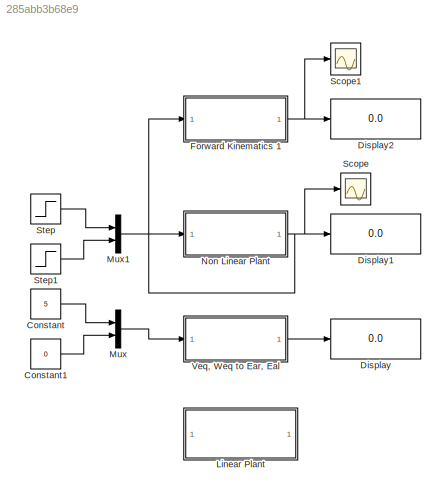
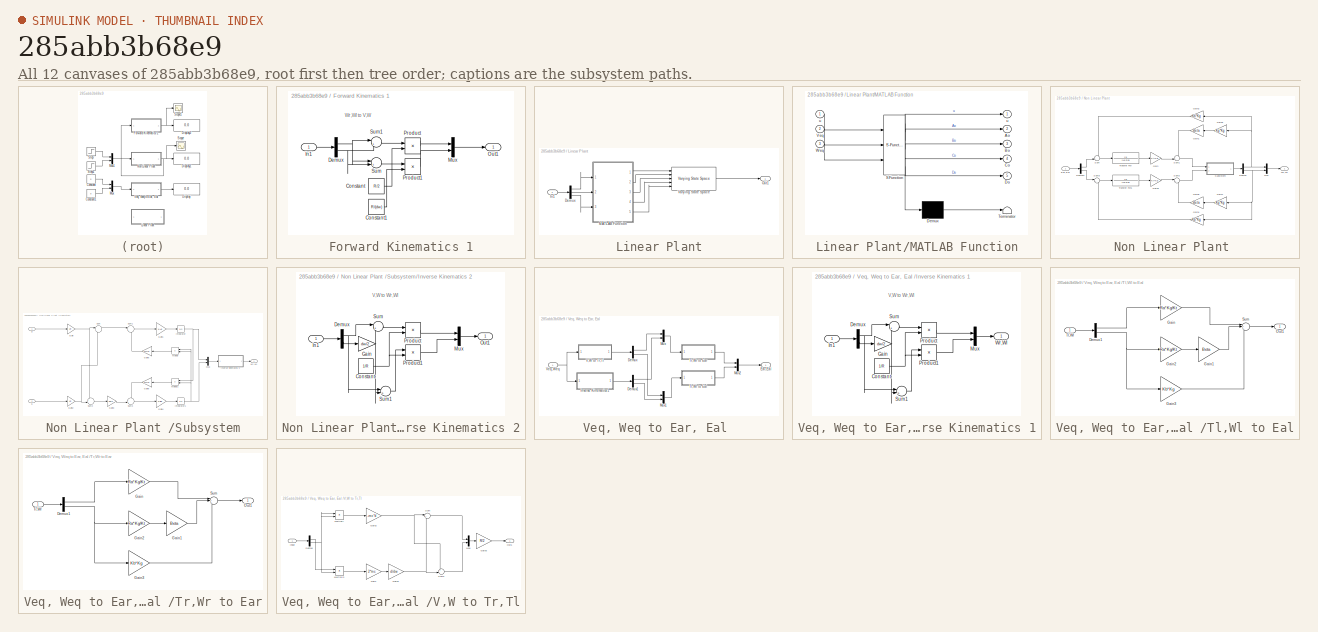
[diagram: thumbnail index - all 12 canvases of the model, root first then tree order]
MODEL slx_285abb3b68e9
KIND model
CONFIG AbsTol = auto
CONFIG EnableMultiTasking = off
CONFIG FixedStep = auto
CONFIG MaxStep = auto
CONFIG MinStep = auto
CONFIG RelTol = 1e-3
CONFIG SampleTimeConstraint = Unconstrained
CONFIG Solver = VariableStepAuto
CONFIG SolverName = VariableStepAuto
CONFIG StartTime = 0.0
CONFIG StopTime = 30
BLOCK [Constant] Constant
  Value = 5
BLOCK [Constant] Constant1
  Value = 0
BLOCK [Display] Display
  Decimation = 1
  Ports = [1]
BLOCK [Display] Display1
  Decimation = 1
  Ports = [1]
BLOCK [Display] Display2
  Decimation = 1
  Ports = [1]
BLOCK [SubSystem] Forward Kinematics 1
  Ports = [1, 1]
  RequestExecContextInheritance = off
BLOCK [Constant] Forward Kinematics 1/Constant
  Value = R/2
BLOCK [Constant] Forward Kinematics 1/Constant1
  Value = R/(dw)
BLOCK [Demux] Forward Kinematics 1/Demux
  DisplayOption = bar
  Outputs = 2
  Ports = [1, 2]
BLOCK [Inport] Forward Kinematics 1/In1
  IconDisplay = Port number
BLOCK [Mux] Forward Kinematics 1/Mux
  DisplayOption = bar
  Inputs = 2
  Ports = [2, 1]
BLOCK [Outport] Forward Kinematics 1/Out1
  IconDisplay = Port number
BLOCK [Product] Forward Kinematics 1/Product
  InputSameDT = off
  OutDataTypeStr = Inherit: Inherit via internal rule
  Ports = [2, 1]
  RndMeth = Floor
  SaturateOnIntegerOverflow = off
BLOCK [Product] Forward Kinematics 1/Product1
  InputSameDT = off
  OutDataTypeStr = Inherit: Inherit via internal rule
  Ports = [2, 1]
  RndMeth = Floor
  SaturateOnIntegerOverflow = off
BLOCK [Sum] Forward Kinematics 1/Sum
  IconShape = round
  InputSameDT = off
  Inputs = |+-
  OutDataTypeStr = Inherit: Inherit via internal rule
  Ports = [2, 1]
  SaturateOnIntegerOverflow = off
BLOCK [Sum] Forward Kinematics 1/Sum1
  IconShape = round
  InputSameDT = off
  Inputs = |++
  OutDataTypeStr = Inherit: Inherit via internal rule
  Ports = [2, 1]
  SaturateOnIntegerOverflow = off
BLOCK [SubSystem] Linear Plant
  Ports = [1, 1]
  RequestExecContextInheritance = off
BLOCK [Demux] Linear Plant/Demux
  DisplayOption = bar
  Outputs = 3
  Ports = [1, 3]
BLOCK [Inport] Linear Plant/In1
  IconDisplay = Port number
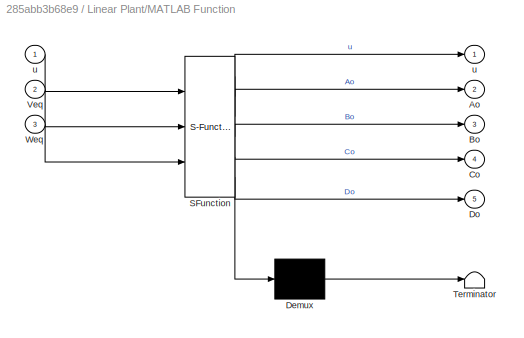
BLOCK [SubSystem] Linear Plant/MATLAB Function
  ErrorFcn = Stateflow.Translate.translate
  PermitHierarchicalResolution = ExplicitOnly
  Ports = [3, 5]
  RequestExecContextInheritance = off
  SFBlockType = MATLAB Function
  SystemSampleTime = 0
  TreatAsAtomicUnit = on
BLOCK [Demux] Linear Plant/MATLAB Function/ Demux 
  Outputs = 1
  Ports = [1, 1]
BLOCK [S-Function] Linear Plant/MATLAB Function/ SFunction 
  EnableBusSupport = on
  FunctionName = sf_sfun
  Parameters = I,Iw,L,R,d,dw,md
  PortCounts = [3 6]
  Ports = [3, 6]
  SFcnIsStateOwnerBlock = off
  SFunctionDeploymentMode = off
  Tag = Stateflow S-Function NonLinear_Plant 1
BLOCK [Terminator] Linear Plant/MATLAB Function/ Terminator 
BLOCK [Outport] Linear Plant/MATLAB Function/Ao
  IconDisplay = Port number
  Port = 2
BLOCK [Outport] Linear Plant/MATLAB Function/Bo
  IconDisplay = Port number
  Port = 3
BLOCK [Outport] Linear Plant/MATLAB Function/Co
  IconDisplay = Port number
  Port = 4
BLOCK [Outport] Linear Plant/MATLAB Function/Do
  IconDisplay = Port number
  Port = 5
BLOCK [Inport] Linear Plant/MATLAB Function/Veq
  IconDisplay = Port number
  Port = 2
BLOCK [Inport] Linear Plant/MATLAB Function/Weq
  IconDisplay = Port number
  Port = 3
BLOCK [Outport] Linear Plant/MATLAB Function/u
  IconDisplay = Port number
BLOCK [Inport] Linear Plant/MATLAB Function/u 
  IconDisplay = Port number
BLOCK [Outport] Linear Plant/Out1
  IconDisplay = Port number
BLOCK [Reference] Linear Plant/Varying State Space  REF=cstblocks/Linear Parameter Varying/Varying State Space
  Ports = [5, 1]
  SourceBlock = cstblocks/Linear Parameter Varying/Varying State Space
  SourceProductBaseCode = CT
  SourceProductName = Control System Toolbox
  SourceType = Varying State Space
BLOCK [Mux] Mux
  DisplayOption = bar
  Inputs = 2
  Ports = [2, 1]
BLOCK [Mux] Mux1
  DisplayOption = bar
  Inputs = 2
  Ports = [2, 1]
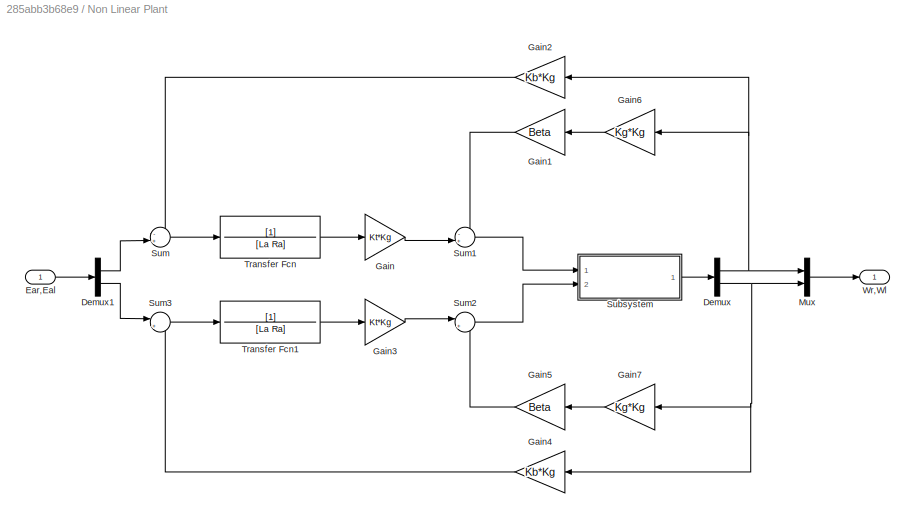
BLOCK [SubSystem] Non Linear Plant 
  Ports = [1, 1]
  RequestExecContextInheritance = off
BLOCK [Demux] Non Linear Plant /Demux
  DisplayOption = bar
  Outputs = 2
  Ports = [1, 2]
BLOCK [Demux] Non Linear Plant /Demux1
  DisplayOption = bar
  Outputs = 2
  Ports = [1, 2]
BLOCK [Inport] Non Linear Plant /Ear,Eal
  IconDisplay = Port number
BLOCK [Gain] Non Linear Plant /Gain
  Gain = Kt*Kg
  OutDataTypeStr = Inherit: Inherit via internal rule
  ParamDataTypeStr = Inherit: Inherit via internal rule
  SaturateOnIntegerOverflow = off
BLOCK [Gain] Non Linear Plant /Gain1
  Gain = Beta
  OutDataTypeStr = Inherit: Inherit via internal rule
  ParamDataTypeStr = Inherit: Inherit via internal rule
  SaturateOnIntegerOverflow = off
BLOCK [Gain] Non Linear Plant /Gain2
  Gain = Kb*Kg
  OutDataTypeStr = Inherit: Inherit via internal rule
  ParamDataTypeStr = Inherit: Inherit via internal rule
  SaturateOnIntegerOverflow = off
BLOCK [Gain] Non Linear Plant /Gain3
  Gain = Kt*Kg
  OutDataTypeStr = Inherit: Inherit via internal rule
  ParamDataTypeStr = Inherit: Inherit via internal rule
  SaturateOnIntegerOverflow = off
BLOCK [Gain] Non Linear Plant /Gain4
  Gain = Kb*Kg
  OutDataTypeStr = Inherit: Inherit via internal rule
  ParamDataTypeStr = Inherit: Inherit via internal rule
  SaturateOnIntegerOverflow = off
BLOCK [Gain] Non Linear Plant /Gain5
  Gain = Beta
  OutDataTypeStr = Inherit: Inherit via internal rule
  ParamDataTypeStr = Inherit: Inherit via internal rule
  SaturateOnIntegerOverflow = off
BLOCK [Gain] Non Linear Plant /Gain6
  Gain = Kg*Kg
  OutDataTypeStr = Inherit: Inherit via internal rule
  ParamDataTypeStr = Inherit: Inherit via internal rule
  SaturateOnIntegerOverflow = off
BLOCK [Gain] Non Linear Plant /Gain7
  Gain = Kg*Kg
  OutDataTypeStr = Inherit: Inherit via internal rule
  ParamDataTypeStr = Inherit: Inherit via internal rule
  SaturateOnIntegerOverflow = off
BLOCK [Mux] Non Linear Plant /Mux
  DisplayOption = bar
  Inputs = 2
  Ports = [2, 1]
BLOCK [SubSystem] Non Linear Plant /Subsystem
  Ports = [2, 1]
  RequestExecContextInheritance = off
BLOCK [Gain] Non Linear Plant /Subsystem/Gain
  Gain = 1/R
  OutDataTypeStr = Inherit: Inherit via internal rule
  ParamDataTypeStr = Inherit: Inherit via internal rule
  SaturateOnIntegerOverflow = off
BLOCK [Gain] Non Linear Plant /Subsystem/Gain1
  Gain = 1/Ad
  OutDataTypeStr = Inherit: Inherit via internal rule
  ParamDataTypeStr = Inherit: Inherit via internal rule
  SaturateOnIntegerOverflow = off
BLOCK [Gain] Non Linear Plant /Subsystem/Gain2
  Gain = 1/R
  OutDataTypeStr = Inherit: Inherit via internal rule
  ParamDataTypeStr = Inherit: Inherit via internal rule
  SaturateOnIntegerOverflow = off
BLOCK [Gain] Non Linear Plant /Subsystem/Gain3
  Gain = dw/2
  OutDataTypeStr = Inherit: Inherit via internal rule
  ParamDataTypeStr = Inherit: Inherit via internal rule
  SaturateOnIntegerOverflow = off
BLOCK [Gain] Non Linear Plant /Subsystem/Gain4
  Gain = 1/Bd
  OutDataTypeStr = Inherit: Inherit via internal rule
  ParamDataTypeStr = Inherit: Inherit via internal rule
  SaturateOnIntegerOverflow = off
BLOCK [Gain] Non Linear Plant /Subsystem/Gain5
  Gain = mc*d
  OutDataTypeStr = Inherit: Inherit via internal rule
  ParamDataTypeStr = Inherit: Inherit via internal rule
  SaturateOnIntegerOverflow = off
BLOCK [Gain] Non Linear Plant /Subsystem/Gain6
  Gain = mc*d
  OutDataTypeStr = Inherit: Inherit via internal rule
  ParamDataTypeStr = Inherit: Inherit via internal rule
  SaturateOnIntegerOverflow = off
BLOCK [Integrator] Non Linear Plant /Subsystem/Integrator
  Ports = [1, 1]
BLOCK [Integrator] Non Linear Plant /Subsystem/Integrator1
  Ports = [1, 1]
BLOCK [SubSystem] Non Linear Plant /Subsystem/Inverse Kinematics 2
  Ports = [1, 1]
  RequestExecContextInheritance = off
BLOCK [Constant] Non Linear Plant /Subsystem/Inverse Kinematics 2/Constant
  Value = 1/R
BLOCK [Demux] Non Linear Plant /Subsystem/Inverse Kinematics 2/Demux
  DisplayOption = bar
  Outputs = 2
  Ports = [1, 2]
BLOCK [Gain] Non Linear Plant /Subsystem/Inverse Kinematics 2/Gain
  Gain = dw/2
  OutDataTypeStr = Inherit: Inherit via internal rule
  ParamDataTypeStr = Inherit: Inherit via internal rule
  SaturateOnIntegerOverflow = off
BLOCK [Inport] Non Linear Plant /Subsystem/Inverse Kinematics 2/In1
  IconDisplay = Port number
BLOCK [Mux] Non Linear Plant /Subsystem/Inverse Kinematics 2/Mux
  DisplayOption = bar
  Inputs = 2
  Ports = [2, 1]
BLOCK [Outport] Non Linear Plant /Subsystem/Inverse Kinematics 2/Out1
  IconDisplay = Port number
BLOCK [Product] Non Linear Plant /Subsystem/Inverse Kinematics 2/Product
  InputSameDT = off
  OutDataTypeStr = Inherit: Inherit via internal rule
  Ports = [2, 1]
  RndMeth = Floor
  SaturateOnIntegerOverflow = off
BLOCK [Product] Non Linear Plant /Subsystem/Inverse Kinematics 2/Product1
  InputSameDT = off
  OutDataTypeStr = Inherit: Inherit via internal rule
  Ports = [2, 1]
  RndMeth = Floor
  SaturateOnIntegerOverflow = off
BLOCK [Sum] Non Linear Plant /Subsystem/Inverse Kinematics 2/Sum
  IconShape = round
  InputSameDT = off
  Inputs = |++
  OutDataTypeStr = Inherit: Inherit via internal rule
  Ports = [2, 1]
  SaturateOnIntegerOverflow = off
BLOCK [Sum] Non Linear Plant /Subsystem/Inverse Kinematics 2/Sum1
  IconShape = round
  InputSameDT = off
  Inputs = |+-
  OutDataTypeStr = Inherit: Inherit via internal rule
  Ports = [2, 1]
  SaturateOnIntegerOverflow = off
BLOCK [Product] Non Linear Plant /Subsystem/Multiply
  InputSameDT = off
  OutDataTypeStr = Inherit: Inherit via internal rule
  Ports = [2, 1]
  RndMeth = Floor
  SaturateOnIntegerOverflow = off
BLOCK [Product] Non Linear Plant /Subsystem/Multiply1
  InputSameDT = off
  OutDataTypeStr = Inherit: Inherit via internal rule
  Ports = [2, 1]
  RndMeth = Floor
  SaturateOnIntegerOverflow = off
BLOCK [Mux] Non Linear Plant /Subsystem/Mux
  DisplayOption = bar
  Inputs = 2
  Ports = [2, 1]
BLOCK [Sum] Non Linear Plant /Subsystem/Sum
  IconShape = round
  InputSameDT = off
  Inputs = |++
  OutDataTypeStr = Inherit: Inherit via internal rule
  Ports = [2, 1]
  SaturateOnIntegerOverflow = off
BLOCK [Sum] Non Linear Plant /Subsystem/Sum1
  IconShape = round
  InputSameDT = off
  Inputs = |++
  OutDataTypeStr = Inherit: Inherit via internal rule
  Ports = [2, 1]
  SaturateOnIntegerOverflow = off
BLOCK [Sum] Non Linear Plant /Subsystem/Sum2
  IconShape = round
  InputSameDT = off
  Inputs = +-|
  OutDataTypeStr = Inherit: Inherit via internal rule
  Ports = [2, 1]
  SaturateOnIntegerOverflow = off
BLOCK [Sum] Non Linear Plant /Subsystem/Sum3
  IconShape = round
  InputSameDT = off
  Inputs = -+|
  OutDataTypeStr = Inherit: Inherit via internal rule
  Ports = [2, 1]
  SaturateOnIntegerOverflow = off
BLOCK [Inport] Non Linear Plant /Subsystem/Tl
  IconDisplay = Port number
  Port = 2
BLOCK [Inport] Non Linear Plant /Subsystem/Tr
  IconDisplay = Port number and signal name
BLOCK [Outport] Non Linear Plant /Subsystem/Wr,Wl
  IconDisplay = Port number
BLOCK [Sum] Non Linear Plant /Sum
  IconShape = round
  InputSameDT = off
  Inputs = -+|
  OutDataTypeStr = Inherit: Inherit via internal rule
  Ports = [2, 1]
  SaturateOnIntegerOverflow = off
BLOCK [Sum] Non Linear Plant /Sum1
  IconShape = round
  InputSameDT = off
  Inputs = -+|
  OutDataTypeStr = Inherit: Inherit via internal rule
  Ports = [2, 1]
  SaturateOnIntegerOverflow = off
BLOCK [Sum] Non Linear Plant /Sum2
  IconShape = round
  InputSameDT = off
  Inputs = |+-
  OutDataTypeStr = Inherit: Inherit via internal rule
  Ports = [2, 1]
  SaturateOnIntegerOverflow = off
BLOCK [Sum] Non Linear Plant /Sum3
  IconShape = round
  InputSameDT = off
  Inputs = |+-
  OutDataTypeStr = Inherit: Inherit via internal rule
  Ports = [2, 1]
  SaturateOnIntegerOverflow = off
BLOCK [TransferFcn] Non Linear Plant /Transfer Fcn
  Denominator = [La Ra]
BLOCK [TransferFcn] Non Linear Plant /Transfer Fcn1
  Denominator = [La Ra]
BLOCK [Outport] Non Linear Plant /Wr,Wl
  IconDisplay = Port number
BLOCK [Scope] Scope
  Floating = off
  NumInputPorts = 1
  Ports = [1]
  ScopeSpecificationString = Simulink.scopes.TimeScopeBlockCfg('CurrentConfiguration', extmgr.ConfigurationSet(extmgr.Configuration('Core','General UI',true),extmgr.Configuration('Core','Source UI',true),extmgr.Configuration('Sources','WiredSimulink',true),extmgr.Configuration('Visuals','Time Domain',true,'SerializedDisplays',{struct('MinYLimReal','-9.19242','MaxYLimReal','82.73163','YLabelReal','','MinYLimMag','0.00000','Max...<+1393ch>
BLOCK [Scope] Scope1
  Floating = off
  NumInputPorts = 1
  Ports = [1]
  ScopeSpecificationString = Simulink.scopes.TimeScopeBlockCfg('CurrentConfiguration', extmgr.ConfigurationSet(extmgr.Configuration('Core','General UI',true),extmgr.Configuration('Core','Source UI',true),extmgr.Configuration('Sources','WiredSimulink',true,'DataLoggingVariableName','ScopeData1'),extmgr.Configuration('Visuals','Time Domain',true,'SerializedDisplays',{struct('MinYLimReal','-1.54432','MaxYLimReal','13.89892','YLa...<+1439ch>
BLOCK [Step] Step
  After = 27
  SampleTime = 0
  Time = 0
BLOCK [Step] Step1
  After = -27
  SampleTime = 0
  Time = 0
BLOCK [SubSystem] Veq, Weq to Ear, Eal 
  Ports = [1, 1]
  RequestExecContextInheritance = off
BLOCK [Demux] Veq, Weq to Ear, Eal /Demux
  DisplayOption = bar
  Outputs = 2
  Ports = [1, 2]
BLOCK [Demux] Veq, Weq to Ear, Eal /Demux1
  DisplayOption = bar
  Outputs = 2
  Ports = [1, 2]
BLOCK [Outport] Veq, Weq to Ear, Eal /Ear,Eal
  IconDisplay = Port number
BLOCK [SubSystem] Veq, Weq to Ear, Eal /Inverse Kinematics 1
  Ports = [1, 1]
  RequestExecContextInheritance = off
BLOCK [Constant] Veq, Weq to Ear, Eal /Inverse Kinematics 1/Constant
  Value = 1/R
BLOCK [Demux] Veq, Weq to Ear, Eal /Inverse Kinematics 1/Demux
  DisplayOption = bar
  Outputs = 2
  Ports = [1, 2]
BLOCK [Gain] Veq, Weq to Ear, Eal /Inverse Kinematics 1/Gain
  Gain = dw/2
  OutDataTypeStr = Inherit: Inherit via internal rule
  ParamDataTypeStr = Inherit: Inherit via internal rule
  SaturateOnIntegerOverflow = off
BLOCK [Inport] Veq, Weq to Ear, Eal /Inverse Kinematics 1/In1
  IconDisplay = Port number
BLOCK [Mux] Veq, Weq to Ear, Eal /Inverse Kinematics 1/Mux
  DisplayOption = bar
  Inputs = 2
  Ports = [2, 1]
BLOCK [Product] Veq, Weq to Ear, Eal /Inverse Kinematics 1/Product
  InputSameDT = off
  OutDataTypeStr = Inherit: Inherit via internal rule
  Ports = [2, 1]
  RndMeth = Floor
  SaturateOnIntegerOverflow = off
BLOCK [Product] Veq, Weq to Ear, Eal /Inverse Kinematics 1/Product1
  InputSameDT = off
  OutDataTypeStr = Inherit: Inherit via internal rule
  Ports = [2, 1]
  RndMeth = Floor
  SaturateOnIntegerOverflow = off
BLOCK [Sum] Veq, Weq to Ear, Eal /Inverse Kinematics 1/Sum
  IconShape = round
  InputSameDT = off
  Inputs = |++
  OutDataTypeStr = Inherit: Inherit via internal rule
  Ports = [2, 1]
  SaturateOnIntegerOverflow = off
BLOCK [Sum] Veq, Weq to Ear, Eal /Inverse Kinematics 1/Sum1
  IconShape = round
  InputSameDT = off
  Inputs = |+-
  OutDataTypeStr = Inherit: Inherit via internal rule
  Ports = [2, 1]
  SaturateOnIntegerOverflow = off
BLOCK [Outport] Veq, Weq to Ear, Eal /Inverse Kinematics 1/Wr,Wl
  IconDisplay = Port number
BLOCK [Mux] Veq, Weq to Ear, Eal /Mux
  DisplayOption = bar
  Inputs = 2
  Ports = [2, 1]
BLOCK [Mux] Veq, Weq to Ear, Eal /Mux1
  DisplayOption = bar
  Inputs = 2
  Ports = [2, 1]
BLOCK [Mux] Veq, Weq to Ear, Eal /Mux2
  DisplayOption = bar
  Inputs = 2
  Ports = [2, 1]
BLOCK [SubSystem] Veq, Weq to Ear, Eal /Tl,Wl to Eal
  Ports = [1, 1]
  RequestExecContextInheritance = off
BLOCK [Demux] Veq, Weq to Ear, Eal /Tl,Wl to Eal/Demux1
  DisplayOption = bar
  Outputs = 2
  Ports = [1, 2]
BLOCK [Gain] Veq, Weq to Ear, Eal /Tl,Wl to Eal/Gain
  Gain = Ra*Kg/Kt
  OutDataTypeStr = Inherit: Inherit via internal rule
  ParamDataTypeStr = Inherit: Inherit via internal rule
  SaturateOnIntegerOverflow = off
BLOCK [Gain] Veq, Weq to Ear, Eal /Tl,Wl to Eal/Gain1
  Gain = Beta
  OutDataTypeStr = Inherit: Inherit via internal rule
  ParamDataTypeStr = Inherit: Inherit via internal rule
  SaturateOnIntegerOverflow = off
BLOCK [Gain] Veq, Weq to Ear, Eal /Tl,Wl to Eal/Gain2
  Gain = Ra*Kg/Kt
  OutDataTypeStr = Inherit: Inherit via internal rule
  ParamDataTypeStr = Inherit: Inherit via internal rule
  SaturateOnIntegerOverflow = off
BLOCK [Gain] Veq, Weq to Ear, Eal /Tl,Wl to Eal/Gain3
  Gain = Kb*Kg
  OutDataTypeStr = Inherit: Inherit via internal rule
  ParamDataTypeStr = Inherit: Inherit via internal rule
  SaturateOnIntegerOverflow = off
BLOCK [Outport] Veq, Weq to Ear, Eal /Tl,Wl to Eal/Out1
  IconDisplay = Port number
BLOCK [Sum] Veq, Weq to Ear, Eal /Tl,Wl to Eal/Sum
  IconShape = round
  InputSameDT = off
  Inputs = |+++
  OutDataTypeStr = Inherit: Inherit via internal rule
  Ports = [3, 1]
  SaturateOnIntegerOverflow = off
BLOCK [Inport] Veq, Weq to Ear, Eal /Tl,Wl to Eal/Tl,Wl
  IconDisplay = Port number
BLOCK [SubSystem] Veq, Weq to Ear, Eal /Tr,Wr to Ear
  Ports = [1, 1]
  RequestExecContextInheritance = off
BLOCK [Demux] Veq, Weq to Ear, Eal /Tr,Wr to Ear/Demux1
  DisplayOption = bar
  Outputs = 2
  Ports = [1, 2]
BLOCK [Gain] Veq, Weq to Ear, Eal /Tr,Wr to Ear/Gain
  Gain = Ra*Kg/Kt
  OutDataTypeStr = Inherit: Inherit via internal rule
  ParamDataTypeStr = Inherit: Inherit via internal rule
  SaturateOnIntegerOverflow = off
BLOCK [Gain] Veq, Weq to Ear, Eal /Tr,Wr to Ear/Gain1
  Gain = Beta
  OutDataTypeStr = Inherit: Inherit via internal rule
  ParamDataTypeStr = Inherit: Inherit via internal rule
  SaturateOnIntegerOverflow = off
BLOCK [Gain] Veq, Weq to Ear, Eal /Tr,Wr to Ear/Gain2
  Gain = Ra*Kg/Kt
  OutDataTypeStr = Inherit: Inherit via internal rule
  ParamDataTypeStr = Inherit: Inherit via internal rule
  SaturateOnIntegerOverflow = off
BLOCK [Gain] Veq, Weq to Ear, Eal /Tr,Wr to Ear/Gain3
  Gain = Kb*Kg
  OutDataTypeStr = Inherit: Inherit via internal rule
  ParamDataTypeStr = Inherit: Inherit via internal rule
  SaturateOnIntegerOverflow = off
BLOCK [Outport] Veq, Weq to Ear, Eal /Tr,Wr to Ear/Out1
  IconDisplay = Port number
BLOCK [Sum] Veq, Weq to Ear, Eal /Tr,Wr to Ear/Sum
  IconShape = round
  InputSameDT = off
  Inputs = |+++
  OutDataTypeStr = Inherit: Inherit via internal rule
  Ports = [3, 1]
  SaturateOnIntegerOverflow = off
BLOCK [Inport] Veq, Weq to Ear, Eal /Tr,Wr to Ear/Tr,Wr
  IconDisplay = Port number
BLOCK [SubSystem] Veq, Weq to Ear, Eal /V,W to Tr,Tl
  Ports = [1, 1]
  RequestExecContextInheritance = off
BLOCK [Demux] Veq, Weq to Ear, Eal /V,W to Tr,Tl/Demux
  DisplayOption = bar
  Outputs = 2
  Ports = [1, 2]
BLOCK [Gain] Veq, Weq to Ear, Eal /V,W to Tr,Tl/Gain
  Gain = 2*mc
  OutDataTypeStr = Inherit: Inherit via internal rule
  ParamDataTypeStr = Inherit: Inherit via internal rule
  SaturateOnIntegerOverflow = off
BLOCK [Gain] Veq, Weq to Ear, Eal /V,W to Tr,Tl/Gain1
  Gain = d/dw
  OutDataTypeStr = Inherit: Inherit via internal rule
  ParamDataTypeStr = Inherit: Inherit via internal rule
  SaturateOnIntegerOverflow = off
BLOCK [Gain] Veq, Weq to Ear, Eal /V,W to Tr,Tl/Gain2
  Gain = -mc*d
  OutDataTypeStr = Inherit: Inherit via internal rule
  ParamDataTypeStr = Inherit: Inherit via internal rule
  SaturateOnIntegerOverflow = off
BLOCK [Gain] Veq, Weq to Ear, Eal /V,W to Tr,Tl/Gain3
  Gain = R/2
  OutDataTypeStr = Inherit: Inherit via internal rule
  ParamDataTypeStr = Inherit: Inherit via internal rule
  SaturateOnIntegerOverflow = off
BLOCK [Inport] Veq, Weq to Ear, Eal /V,W to Tr,Tl/Input
  IconDisplay = Port number
BLOCK [Product] Veq, Weq to Ear, Eal /V,W to Tr,Tl/Multiply
  InputSameDT = off
  OutDataTypeStr = Inherit: Inherit via internal rule
  Ports = [2, 1]
  RndMeth = Floor
  SaturateOnIntegerOverflow = off
BLOCK [Product] Veq, Weq to Ear, Eal /V,W to Tr,Tl/Multiply1
  InputSameDT = off
  OutDataTypeStr = Inherit: Inherit via internal rule
  Ports = [2, 1]
  RndMeth = Floor
  SaturateOnIntegerOverflow = off
BLOCK [Mux] Veq, Weq to Ear, Eal /V,W to Tr,Tl/Mux
  DisplayOption = bar
  Inputs = 2
  Ports = [2, 1]
BLOCK [Outport] Veq, Weq to Ear, Eal /V,W to Tr,Tl/Out1
  IconDisplay = Port number
BLOCK [Sum] Veq, Weq to Ear, Eal /V,W to Tr,Tl/Sum
  IconShape = round
  InputSameDT = off
  Inputs = |++
  OutDataTypeStr = Inherit: Inherit via internal rule
  Ports = [2, 1]
  SaturateOnIntegerOverflow = off
BLOCK [Sum] Veq, Weq to Ear, Eal /V,W to Tr,Tl/Sum1
  IconShape = round
  InputSameDT = off
  Inputs = +-|
  OutDataTypeStr = Inherit: Inherit via internal rule
  Ports = [2, 1]
  SaturateOnIntegerOverflow = off
BLOCK [Inport] Veq, Weq to Ear, Eal /Veq,Weq
  IconDisplay = Port number
ANNOTATION Forward Kinematics 1: Wr,Wl to V,W
ANNOTATION Non Linear Plant /Subsystem/Inverse Kinematics 2: V,W to Wr,Wl
ANNOTATION Veq, Weq to Ear, Eal /Inverse Kinematics 1: V,W to Wr,Wl
LINE Constant1:1 -> Mux:2
LINE Constant:1 -> Mux:1
LINE Forward Kinematics 1/Constant1:1 -> Forward Kinematics 1/Product1:2
LINE Forward Kinematics 1/Constant:1 -> Forward Kinematics 1/Product:2
NET Forward Kinematics 1/Demux:1 -> Forward Kinematics 1/Sum1:1, Forward Kinematics 1/Sum:1
NET Forward Kinematics 1/Demux:2 -> Forward Kinematics 1/Sum1:2, Forward Kinematics 1/Sum:2
LINE Forward Kinematics 1/In1:1 -> Forward Kinematics 1/Demux:1
LINE Forward Kinematics 1/Mux:1 -> Forward Kinematics 1/Out1:1
LINE Forward Kinematics 1/Product1:1 -> Forward Kinematics 1/Mux:2
LINE Forward Kinematics 1/Product:1 -> Forward Kinematics 1/Mux:1
LINE Forward Kinematics 1/Sum1:1 -> Forward Kinematics 1/Product:1
LINE Forward Kinematics 1/Sum:1 -> Forward Kinematics 1/Product1:1
NET Forward Kinematics 1:1 -> Display2:1, Scope1:1
LINE Linear Plant/Demux:1 -> Linear Plant/MATLAB Function:1
LINE Linear Plant/Demux:2 -> Linear Plant/MATLAB Function:2
LINE Linear Plant/Demux:3 -> Linear Plant/MATLAB Function:3
LINE Linear Plant/In1:1 -> Linear Plant/Demux:1
LINE Linear Plant/MATLAB Function:1 -> Linear Plant/Varying State Space:1
LINE Linear Plant/MATLAB Function:2 -> Linear Plant/Varying State Space:2
LINE Linear Plant/MATLAB Function:3 -> Linear Plant/Varying State Space:3
LINE Linear Plant/MATLAB Function:4 -> Linear Plant/Varying State Space:4
LINE Linear Plant/MATLAB Function:5 -> Linear Plant/Varying State Space:5
LINE Linear Plant/Varying State Space:1 -> Linear Plant/Out1:1
LINE Mux1:1 -> Non Linear Plant :1
LINE Mux:1 -> Veq, Weq to Ear, Eal :1
LINE Non Linear Plant /Demux1:1 -> Non Linear Plant /Sum:2
LINE Non Linear Plant /Demux1:2 -> Non Linear Plant /Sum3:1
NET Non Linear Plant /Demux:1 -> Non Linear Plant /Gain2:1, Non Linear Plant /Gain6:1, Non Linear Plant /Mux:1
NET Non Linear Plant /Demux:2 -> Non Linear Plant /Gain4:1, Non Linear Plant /Gain7:1, Non Linear Plant /Mux:2
LINE Non Linear Plant /Ear,Eal:1 -> Non Linear Plant /Demux1:1
LINE Non Linear Plant /Gain1:1 -> Non Linear Plant /Sum1:1
LINE Non Linear Plant /Gain2:1 -> Non Linear Plant /Sum:1
LINE Non Linear Plant /Gain3:1 -> Non Linear Plant /Sum2:1
LINE Non Linear Plant /Gain4:1 -> Non Linear Plant /Sum3:2
LINE Non Linear Plant /Gain5:1 -> Non Linear Plant /Sum2:2
LINE Non Linear Plant /Gain6:1 -> Non Linear Plant /Gain1:1
LINE Non Linear Plant /Gain7:1 -> Non Linear Plant /Gain5:1
LINE Non Linear Plant /Gain:1 -> Non Linear Plant /Sum1:2
LINE Non Linear Plant /Mux:1 -> Non Linear Plant /Wr,Wl:1
LINE Non Linear Plant /Subsystem/Gain1:1 -> Non Linear Plant /Subsystem/Integrator:1
NET Non Linear Plant /Subsystem/Gain2:1 -> Non Linear Plant /Subsystem/Sum2:2, Non Linear Plant /Subsystem/Sum:2
LINE Non Linear Plant /Subsystem/Gain3:1 -> Non Linear Plant /Subsystem/Sum3:2
LINE Non Linear Plant /Subsystem/Gain4:1 -> Non Linear Plant /Subsystem/Integrator1:1
LINE Non Linear Plant /Subsystem/Gain5:1 -> Non Linear Plant /Subsystem/Sum1:2
LINE Non Linear Plant /Subsystem/Gain6:1 -> Non Linear Plant /Subsystem/Sum3:1
NET Non Linear Plant /Subsystem/Gain:1 -> Non Linear Plant /Subsystem/Sum2:1, Non Linear Plant /Subsystem/Sum:1
NET Non Linear Plant /Subsystem/Integrator1:1 -> Non Linear Plant /Subsystem/Multiply1:2, Non Linear Plant /Subsystem/Multiply:1, Non Linear Plant /Subsystem/Multiply:2, Non Linear Plant /Subsystem/Mux:2
NET Non Linear Plant /Subsystem/Integrator:1 -> Non Linear Plant /Subsystem/Multiply1:1, Non Linear Plant /Subsystem/Mux:1
NET Non Linear Plant /Subsystem/Inverse Kinematics 2/Constant:1 -> Non Linear Plant /Subsystem/Inverse Kinematics 2/Product1:2, Non Linear Plant /Subsystem/Inverse Kinematics 2/Product:2
NET Non Linear Plant /Subsystem/Inverse Kinematics 2/Demux:1 -> Non Linear Plant /Subsystem/Inverse Kinematics 2/Sum1:1, Non Linear Plant /Subsystem/Inverse Kinematics 2/Sum:1
LINE Non Linear Plant /Subsystem/Inverse Kinematics 2/Demux:2 -> Non Linear Plant /Subsystem/Inverse Kinematics 2/Gain:1
NET Non Linear Plant /Subsystem/Inverse Kinematics 2/Gain:1 -> Non Linear Plant /Subsystem/Inverse Kinematics 2/Sum1:2, Non Linear Plant /Subsystem/Inverse Kinematics 2/Sum:2
LINE Non Linear Plant /Subsystem/Inverse Kinematics 2/In1:1 -> Non Linear Plant /Subsystem/Inverse Kinematics 2/Demux:1
LINE Non Linear Plant /Subsystem/Inverse Kinematics 2/Mux:1 -> Non Linear Plant /Subsystem/Inverse Kinematics 2/Out1:1
LINE Non Linear Plant /Subsystem/Inverse Kinematics 2/Product1:1 -> Non Linear Plant /Subsystem/Inverse Kinematics 2/Mux:2
LINE Non Linear Plant /Subsystem/Inverse Kinematics 2/Product:1 -> Non Linear Plant /Subsystem/Inverse Kinematics 2/Mux:1
LINE Non Linear Plant /Subsystem/Inverse Kinematics 2/Sum1:1 -> Non Linear Plant /Subsystem/Inverse Kinematics 2/Product1:1
LINE Non Linear Plant /Subsystem/Inverse Kinematics 2/Sum:1 -> Non Linear Plant /Subsystem/Inverse Kinematics 2/Product:1
LINE Non Linear Plant /Subsystem/Inverse Kinematics 2:1 -> Non Linear Plant /Subsystem/Wr,Wl:1
LINE Non Linear Plant /Subsystem/Multiply1:1 -> Non Linear Plant /Subsystem/Gain6:1
LINE Non Linear Plant /Subsystem/Multiply:1 -> Non Linear Plant /Subsystem/Gain5:1
LINE Non Linear Plant /Subsystem/Mux:1 -> Non Linear Plant /Subsystem/Inverse Kinematics 2:1
LINE Non Linear Plant /Subsystem/Sum1:1 -> Non Linear Plant /Subsystem/Gain1:1
LINE Non Linear Plant /Subsystem/Sum2:1 -> Non Linear Plant /Subsystem/Gain3:1
LINE Non Linear Plant /Subsystem/Sum3:1 -> Non Linear Plant /Subsystem/Gain4:1
LINE Non Linear Plant /Subsystem/Sum:1 -> Non Linear Plant /Subsystem/Sum1:1
LINE Non Linear Plant /Subsystem/Tl:1 -> Non Linear Plant /Subsystem/Gain2:1
LINE Non Linear Plant /Subsystem/Tr:1 -> Non Linear Plant /Subsystem/Gain:1
LINE Non Linear Plant /Subsystem:1 -> Non Linear Plant /Demux:1
LINE Non Linear Plant /Sum1:1 -> Non Linear Plant /Subsystem:1
LINE Non Linear Plant /Sum2:1 -> Non Linear Plant /Subsystem:2
LINE Non Linear Plant /Sum3:1 -> Non Linear Plant /Transfer Fcn1:1
LINE Non Linear Plant /Sum:1 -> Non Linear Plant /Transfer Fcn:1
LINE Non Linear Plant /Transfer Fcn1:1 -> Non Linear Plant /Gain3:1
LINE Non Linear Plant /Transfer Fcn:1 -> Non Linear Plant /Gain:1
NET Non Linear Plant :1 -> Display1:1, Forward Kinematics 1:1, Scope:1
LINE Step1:1 -> Mux1:2
LINE Step:1 -> Mux1:1
LINE Veq, Weq to Ear, Eal /Demux1:1 -> Veq, Weq to Ear, Eal /Mux:2
LINE Veq, Weq to Ear, Eal /Demux1:2 -> Veq, Weq to Ear, Eal /Mux1:2
LINE Veq, Weq to Ear, Eal /Demux:1 -> Veq, Weq to Ear, Eal /Mux:1
LINE Veq, Weq to Ear, Eal /Demux:2 -> Veq, Weq to Ear, Eal /Mux1:1
NET Veq, Weq to Ear, Eal /Inverse Kinematics 1/Constant:1 -> Veq, Weq to Ear, Eal /Inverse Kinematics 1/Product1:2, Veq, Weq to Ear, Eal /Inverse Kinematics 1/Product:2
NET Veq, Weq to Ear, Eal /Inverse Kinematics 1/Demux:1 -> Veq, Weq to Ear, Eal /Inverse Kinematics 1/Sum1:1, Veq, Weq to Ear, Eal /Inverse Kinematics 1/Sum:1
LINE Veq, Weq to Ear, Eal /Inverse Kinematics 1/Demux:2 -> Veq, Weq to Ear, Eal /Inverse Kinematics 1/Gain:1
NET Veq, Weq to Ear, Eal /Inverse Kinematics 1/Gain:1 -> Veq, Weq to Ear, Eal /Inverse Kinematics 1/Sum1:2, Veq, Weq to Ear, Eal /Inverse Kinematics 1/Sum:2
LINE Veq, Weq to Ear, Eal /Inverse Kinematics 1/In1:1 -> Veq, Weq to Ear, Eal /Inverse Kinematics 1/Demux:1
LINE Veq, Weq to Ear, Eal /Inverse Kinematics 1/Mux:1 -> Veq, Weq to Ear, Eal /Inverse Kinematics 1/Wr,Wl:1
LINE Veq, Weq to Ear, Eal /Inverse Kinematics 1/Product1:1 -> Veq, Weq to Ear, Eal /Inverse Kinematics 1/Mux:2
LINE Veq, Weq to Ear, Eal /Inverse Kinematics 1/Product:1 -> Veq, Weq to Ear, Eal /Inverse Kinematics 1/Mux:1
LINE Veq, Weq to Ear, Eal /Inverse Kinematics 1/Sum1:1 -> Veq, Weq to Ear, Eal /Inverse Kinematics 1/Product1:1
LINE Veq, Weq to Ear, Eal /Inverse Kinematics 1/Sum:1 -> Veq, Weq to Ear, Eal /Inverse Kinematics 1/Product:1
LINE Veq, Weq to Ear, Eal /Inverse Kinematics 1:1 -> Veq, Weq to Ear, Eal /Demux1:1
LINE Veq, Weq to Ear, Eal /Mux1:1 -> Veq, Weq to Ear, Eal /Tl,Wl to Eal:1
LINE Veq, Weq to Ear, Eal /Mux2:1 -> Veq, Weq to Ear, Eal /Ear,Eal:1
LINE Veq, Weq to Ear, Eal /Mux:1 -> Veq, Weq to Ear, Eal /Tr,Wr to Ear:1
LINE Veq, Weq to Ear, Eal /Tl,Wl to Eal/Demux1:1 -> Veq, Weq to Ear, Eal /Tl,Wl to Eal/Gain:1
NET Veq, Weq to Ear, Eal /Tl,Wl to Eal/Demux1:2 -> Veq, Weq to Ear, Eal /Tl,Wl to Eal/Gain2:1, Veq, Weq to Ear, Eal /Tl,Wl to Eal/Gain3:1
LINE Veq, Weq to Ear, Eal /Tl,Wl to Eal/Gain1:1 -> Veq, Weq to Ear, Eal /Tl,Wl to Eal/Sum:2
LINE Veq, Weq to Ear, Eal /Tl,Wl to Eal/Gain2:1 -> Veq, Weq to Ear, Eal /Tl,Wl to Eal/Gain1:1
LINE Veq, Weq to Ear, Eal /Tl,Wl to Eal/Gain3:1 -> Veq, Weq to Ear, Eal /Tl,Wl to Eal/Sum:3
LINE Veq, Weq to Ear, Eal /Tl,Wl to Eal/Gain:1 -> Veq, Weq to Ear, Eal /Tl,Wl to Eal/Sum:1
LINE Veq, Weq to Ear, Eal /Tl,Wl to Eal/Sum:1 -> Veq, Weq to Ear, Eal /Tl,Wl to Eal/Out1:1
LINE Veq, Weq to Ear, Eal /Tl,Wl to Eal/Tl,Wl:1 -> Veq, Weq to Ear, Eal /Tl,Wl to Eal/Demux1:1
LINE Veq, Weq to Ear, Eal /Tl,Wl to Eal:1 -> Veq, Weq to Ear, Eal /Mux2:2
LINE Veq, Weq to Ear, Eal /Tr,Wr to Ear/Demux1:1 -> Veq, Weq to Ear, Eal /Tr,Wr to Ear/Gain:1
NET Veq, Weq to Ear, Eal /Tr,Wr to Ear/Demux1:2 -> Veq, Weq to Ear, Eal /Tr,Wr to Ear/Gain2:1, Veq, Weq to Ear, Eal /Tr,Wr to Ear/Gain3:1
LINE Veq, Weq to Ear, Eal /Tr,Wr to Ear/Gain1:1 -> Veq, Weq to Ear, Eal /Tr,Wr to Ear/Sum:2
LINE Veq, Weq to Ear, Eal /Tr,Wr to Ear/Gain2:1 -> Veq, Weq to Ear, Eal /Tr,Wr to Ear/Gain1:1
LINE Veq, Weq to Ear, Eal /Tr,Wr to Ear/Gain3:1 -> Veq, Weq to Ear, Eal /Tr,Wr to Ear/Sum:3
LINE Veq, Weq to Ear, Eal /Tr,Wr to Ear/Gain:1 -> Veq, Weq to Ear, Eal /Tr,Wr to Ear/Sum:1
LINE Veq, Weq to Ear, Eal /Tr,Wr to Ear/Sum:1 -> Veq, Weq to Ear, Eal /Tr,Wr to Ear/Out1:1
LINE Veq, Weq to Ear, Eal /Tr,Wr to Ear/Tr,Wr:1 -> Veq, Weq to Ear, Eal /Tr,Wr to Ear/Demux1:1
LINE Veq, Weq to Ear, Eal /Tr,Wr to Ear:1 -> Veq, Weq to Ear, Eal /Mux2:1
LINE Veq, Weq to Ear, Eal /V,W to Tr,Tl/Demux:1 -> Veq, Weq to Ear, Eal /V,W to Tr,Tl/Multiply1:1
NET Veq, Weq to Ear, Eal /V,W to Tr,Tl/Demux:2 -> Veq, Weq to Ear, Eal /V,W to Tr,Tl/Multiply1:2, Veq, Weq to Ear, Eal /V,W to Tr,Tl/Multiply:1, Veq, Weq to Ear, Eal /V,W to Tr,Tl/Multiply:2
NET Veq, Weq to Ear, Eal /V,W to Tr,Tl/Gain1:1 -> Veq, Weq to Ear, Eal /V,W to Tr,Tl/Sum1:2, Veq, Weq to Ear, Eal /V,W to Tr,Tl/Sum:2
NET Veq, Weq to Ear, Eal /V,W to Tr,Tl/Gain2:1 -> Veq, Weq to Ear, Eal /V,W to Tr,Tl/Sum1:1, Veq, Weq to Ear, Eal /V,W to Tr,Tl/Sum:1
LINE Veq, Weq to Ear, Eal /V,W to Tr,Tl/Gain3:1 -> Veq, Weq to Ear, Eal /V,W to Tr,Tl/Out1:1
LINE Veq, Weq to Ear, Eal /V,W to Tr,Tl/Gain:1 -> Veq, Weq to Ear, Eal /V,W to Tr,Tl/Gain1:1
LINE Veq, Weq to Ear, Eal /V,W to Tr,Tl/Input:1 -> Veq, Weq to Ear, Eal /V,W to Tr,Tl/Demux:1
LINE Veq, Weq to Ear, Eal /V,W to Tr,Tl/Multiply1:1 -> Veq, Weq to Ear, Eal /V,W to Tr,Tl/Gain:1
LINE Veq, Weq to Ear, Eal /V,W to Tr,Tl/Multiply:1 -> Veq, Weq to Ear, Eal /V,W to Tr,Tl/Gain2:1
LINE Veq, Weq to Ear, Eal /V,W to Tr,Tl/Mux:1 -> Veq, Weq to Ear, Eal /V,W to Tr,Tl/Gain3:1
LINE Veq, Weq to Ear, Eal /V,W to Tr,Tl/Sum1:1 -> Veq, Weq to Ear, Eal /V,W to Tr,Tl/Mux:2
LINE Veq, Weq to Ear, Eal /V,W to Tr,Tl/Sum:1 -> Veq, Weq to Ear, Eal /V,W to Tr,Tl/Mux:1
LINE Veq, Weq to Ear, Eal /V,W to Tr,Tl:1 -> Veq, Weq to Ear, Eal /Demux:1
NET Veq, Weq to Ear, Eal /Veq,Weq:1 -> Veq, Weq to Ear, Eal /Inverse Kinematics 1:1, Veq, Weq to Ear, Eal /V,W to Tr,Tl:1
LINE Veq, Weq to Ear, Eal :1 -> Display:1
note: NET lines group one-source signal fan-out (src -> all destinations, sorted); 1:1 wires keep LINE
CHART Linear Plant/MATLAB Function states=1 transitions=1
  STATE_LABEL 'eML_blk_kernel()'
  STATE_LABEL 'SCRIPT:\nfunction [u,Ao,Bo,Co,Do] = fcn(u,Veq,Weq,d, dw, Iw, I, md, R, L)\n% Sample time\n\n\n% Model Parameters\nKt = 0.0046; Kg = 50; Kb = Kt; Beta = 2.29e-06; La =1.729e-03; Ra = 5.51;\nm = 3.4; mc = 2.76 + md; I = I ; Iw = Iw; L = L; d = d; dw = dw; \nA = m + 2*Iw/(R*R); B = I + dw*dw*Iw/(2*R*R);\n\n% Continuous-time model for Plant e_r, e_l to Wr,Wl\nAo = [-2*Beta*Kg*Kg/(A*R*R)  2*mc*d*Weq/A   (Kt*Kg/(R...<+350ch>'
